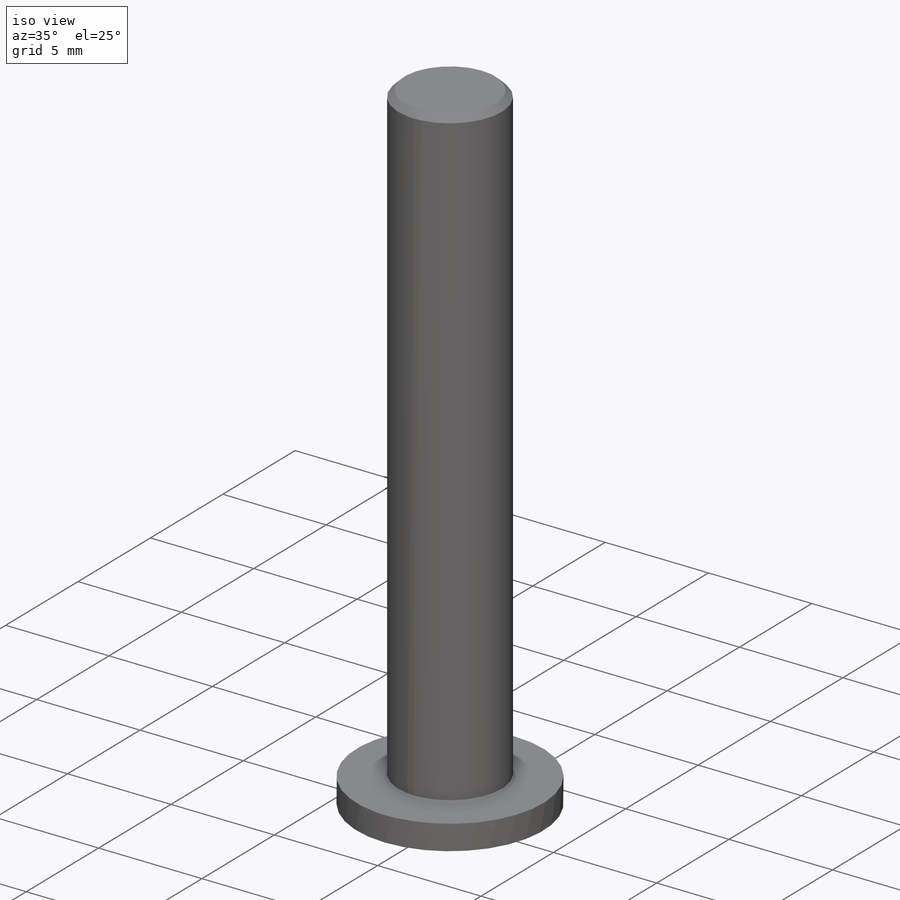
[diagram: iso view]
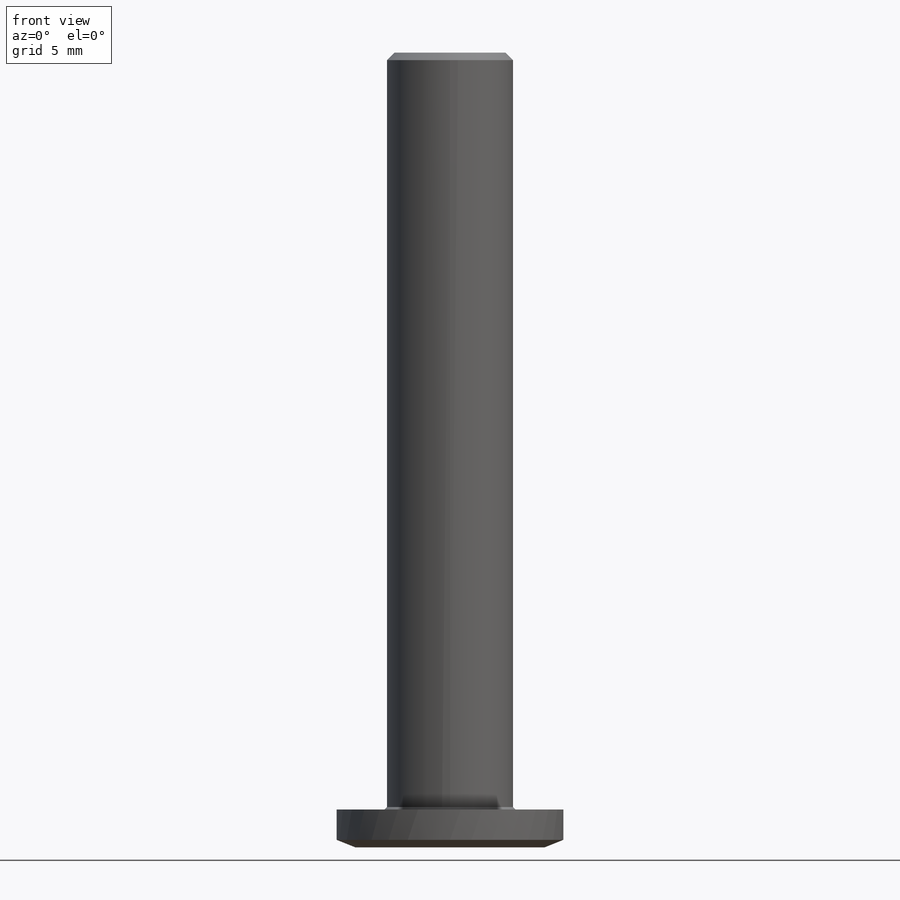
[diagram: front view]
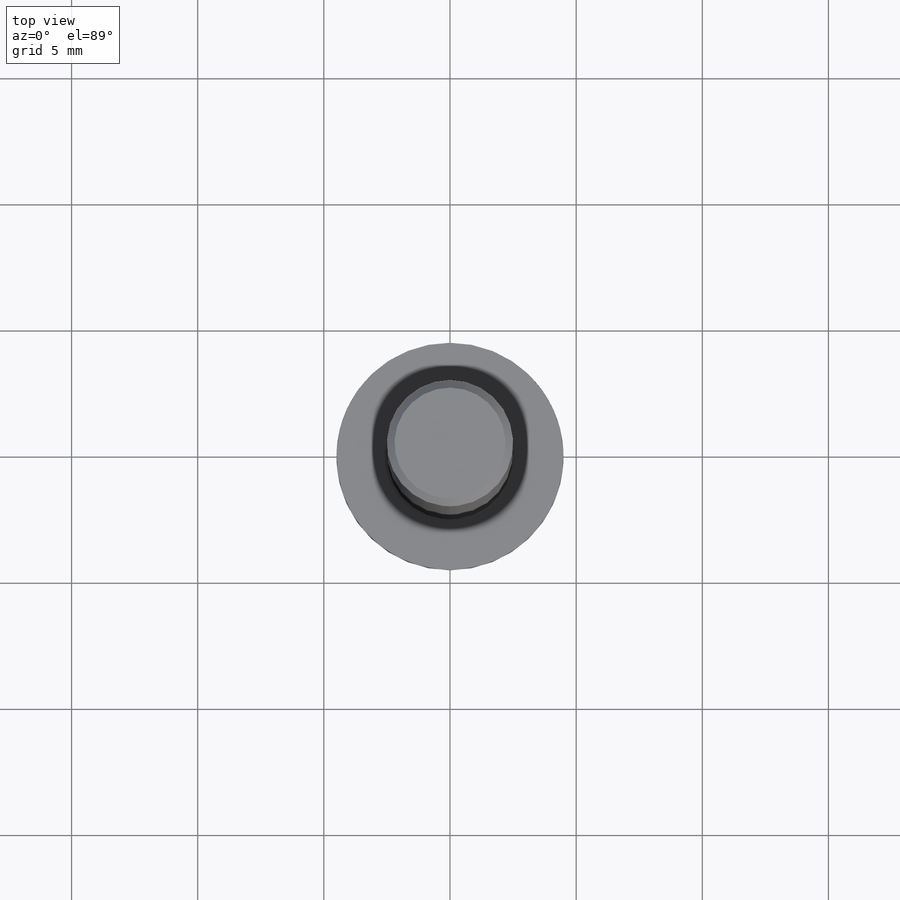
[diagram: top view]
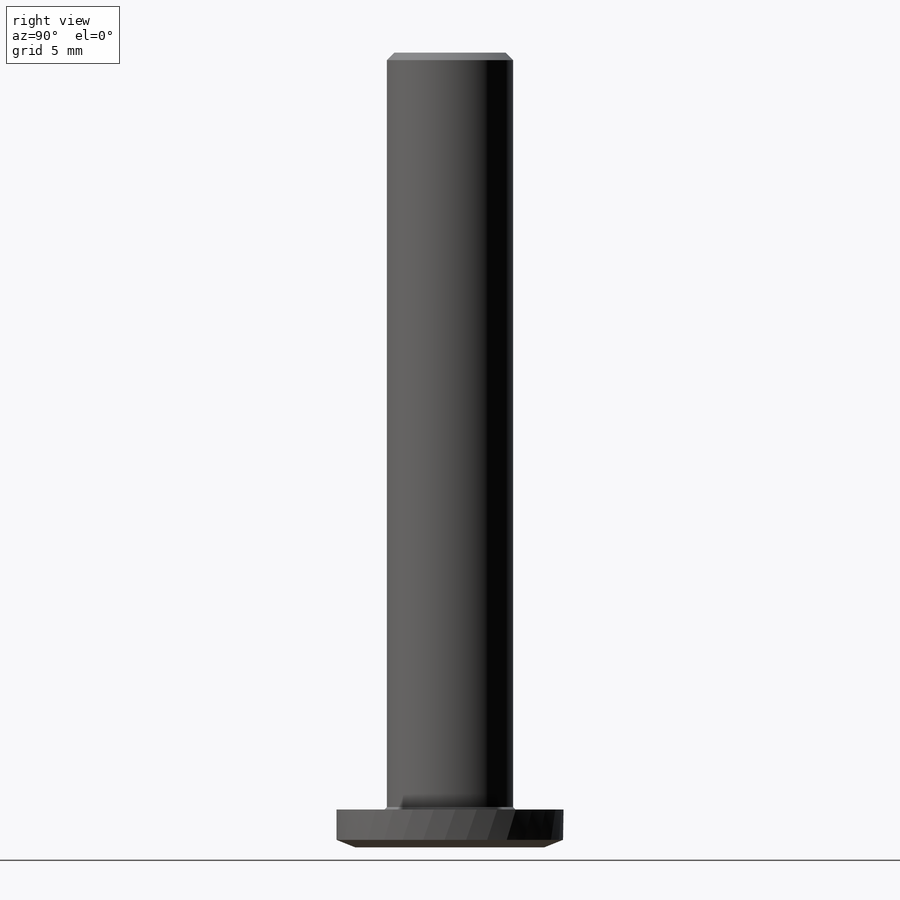
[diagram: right view]
SOLIDWORKS PART (.sldprt)
format: sldprt  version: not decoded by parser v0  size: 186,880 bytes
history: native  units: mm
features: sketch x3, chamfer x3, extrude x2, material x1, cut_extrude x1 (+13 scaffold rows collapsed)
feature tree (23):
  scaffold x13  (default folders/planes/origin — collapsed)
  material  "Alloy Steel"
  sketch  "Sketch2"  dims[D1=9.0mm]
  extrude  "Boss-Extrude1"  Depth=1.5mm
  sketch  "Sketch3"  dims[D1=5.0mm]
  extrude  "Boss-Extrude2"  Depth=30mm
  chamfer  "Chamfer1"  Distance=0.1mm Angle=45deg
  chamfer  "Chamfer2"  Distance=0.75mm
  sketch  "Sketch4"
  cut_extrude  "Cut-Extrude1"  Depth=3mm
  chamfer  "Chamfer3"  Distance=0.3mm Angle=45deg
decode coverage: 8 of 9 modeling features carry decoded parameters
note: suppression state not decoded; provenance and decode notes live in map.json
